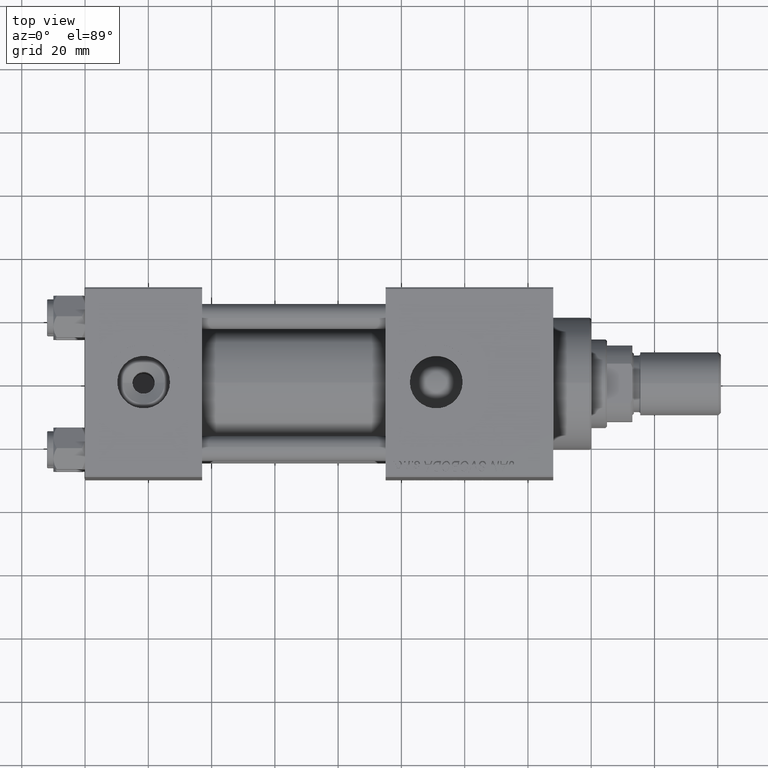
[diagram: clean part render]
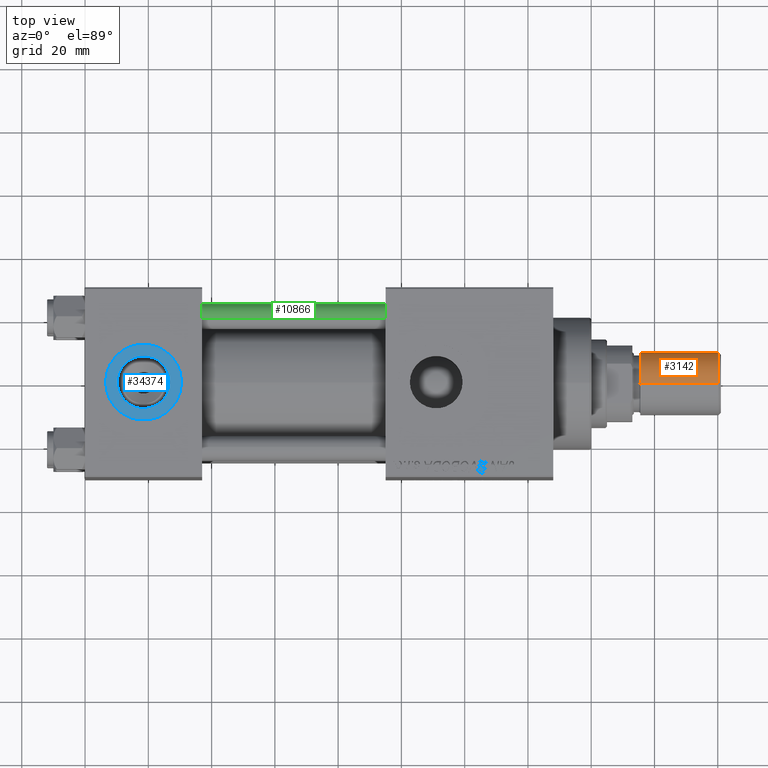
[diagram: same view with three faces highlighted in distinct colors, each labeled with its STEP entity id]
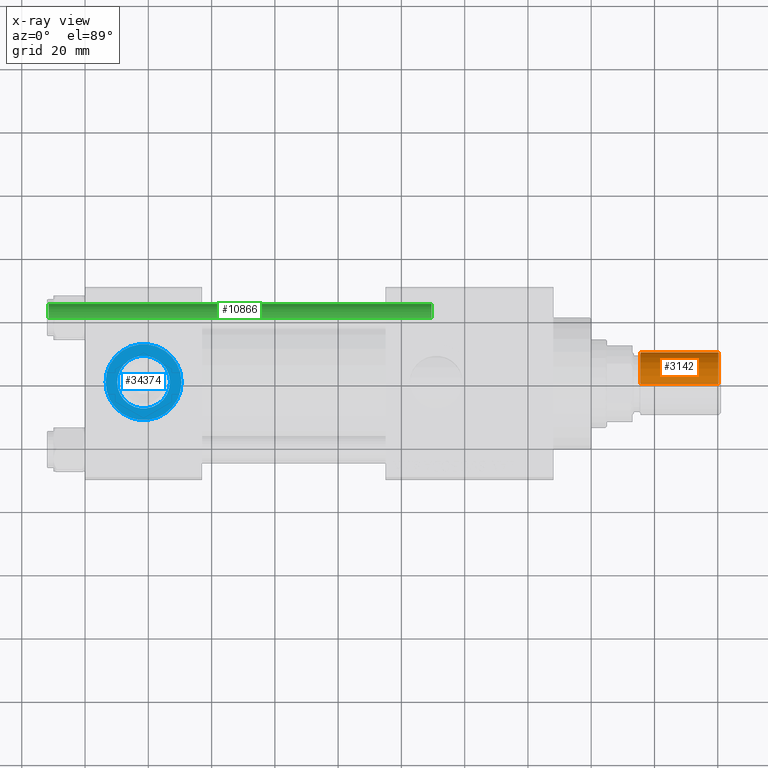
[diagram: x-ray of the same camera — body ghosted, the three highlighted faces saturated]
A machine part, top view with three faces highlighted in distinct colors.
The next image is the same camera in x-ray (body ghosted, the three faces saturated) — at least one of them is partly hidden behind the body in this view.
Their STEP definitions:

[orange] entity #3142 — the highlighted cylindrical surface (edge-blend (fillet) strip) has radius 10 mm, axis along (1, -0, -0).
#45 = CARTESIAN_POINT ( 'NONE',  ( -10.00000000000000000, 0.000000000000000000, 25.50000000000000000 ) ) ;
#997 = CARTESIAN_POINT ( 'NONE',  ( 10.00000000000000000, 1.224646799147353256E-15, 25.50000000000000000 ) ) ;
#2441 = AXIS2_PLACEMENT_3D ( 'NONE', #51791, #47788, #8049 ) ;
#3142 = ADVANCED_FACE ( 'NONE', ( #14195 ), #51235, .T. ) ;
#4289 = DIRECTION ( 'NONE',  ( -0.000000000000000000, -0.000000000000000000, -1.000000000000000000 ) ) ;
#6041 = DIRECTION ( 'NONE',  ( 1.000000000000000000, 0.000000000000000000, 0.000000000000000000 ) ) ;
#6280 = VERTEX_POINT ( 'NONE', #48492 ) ;
#7078 = VECTOR ( 'NONE', #16335, 1000.000000000000000 ) ;
#8049 = DIRECTION ( 'NONE',  ( 1.000000000000000000, 0.000000000000000000, 0.000000000000000000 ) ) ;
#11012 = CIRCLE ( 'NONE', #22943, 10.00000000000000000 ) ;
#11050 = DIRECTION ( 'NONE',  ( -0.000000000000000000, -0.000000000000000000, 1.000000000000000000 ) ) ;
#13521 = CIRCLE ( 'NONE', #2441, 10.00000000000000000 ) ;
#14195 = FACE_OUTER_BOUND ( 'NONE', #34856, .T. ) ;
#14716 = DIRECTION ( 'NONE',  ( -0.000000000000000000, -0.000000000000000000, -1.000000000000000000 ) ) ;
#16335 = DIRECTION ( 'NONE',  ( -0.000000000000000000, -0.000000000000000000, -1.000000000000000000 ) ) ;
#16435 = VERTEX_POINT ( 'NONE', #18601 ) ;
#18601 = CARTESIAN_POINT ( 'NONE',  ( -10.00000000000000000, 0.000000000000000000, 0.8000000000000055955 ) ) ;
#19520 = DIRECTION ( 'NONE',  ( -1.000000000000000000, 0.000000000000000000, 0.000000000000000000 ) ) ;
#19770 = EDGE_CURVE ( 'NONE', #35153, #24727, #28838, .T. ) ;
#19790 = CARTESIAN_POINT ( 'NONE',  ( 10.00000000000000000, 1.224646799147353256E-15, 25.50000000000000000 ) ) ;
#20254 = VECTOR ( 'NONE', #4289, 1000.000000000000000 ) ;
#22943 = AXIS2_PLACEMENT_3D ( 'NONE', #43597, #11050, #6041 ) ;
#24727 = VERTEX_POINT ( 'NONE', #40859 ) ;
#25941 = ORIENTED_EDGE ( 'NONE', *, *, #19770, .T. ) ;
#26581 = EDGE_CURVE ( 'NONE', #35153, #6280, #13521, .T. ) ;
#28282 = AXIS2_PLACEMENT_3D ( 'NONE', #43261, #14716, #19520 ) ;
#28838 = LINE ( 'NONE', #19790, #20254 ) ;
#28863 = LINE ( 'NONE', #45, #7078 ) ;
#30426 = EDGE_CURVE ( 'NONE', #24727, #16435, #11012, .T. ) ;
#34856 = EDGE_LOOP ( 'NONE', ( #37144, #25941, #45739, #35125 ) ) ;
#35125 = ORIENTED_EDGE ( 'NONE', *, *, #43940, .F. ) ;
#35153 = VERTEX_POINT ( 'NONE', #997 ) ;
#37144 = ORIENTED_EDGE ( 'NONE', *, *, #26581, .F. ) ;
#40859 = CARTESIAN_POINT ( 'NONE',  ( 10.00000000000000000, 1.224646799147353256E-15, 0.8000000000000055955 ) ) ;
#43261 = CARTESIAN_POINT ( 'NONE',  ( 0.000000000000000000, 0.000000000000000000, 25.50000000000000000 ) ) ;
#43597 = CARTESIAN_POINT ( 'NONE',  ( 0.000000000000000000, 0.000000000000000000, 0.8000000000000055955 ) ) ;
#43940 = EDGE_CURVE ( 'NONE', #6280, #16435, #28863, .T. ) ;
#45739 = ORIENTED_EDGE ( 'NONE', *, *, #30426, .T. ) ;
#47788 = DIRECTION ( 'NONE',  ( 0.000000000000000000, 0.000000000000000000, 1.000000000000000000 ) ) ;
#48492 = CARTESIAN_POINT ( 'NONE',  ( -10.00000000000000000, 0.000000000000000000, 25.50000000000000000 ) ) ;
#51235 = CYLINDRICAL_SURFACE ( 'NONE', #28282, 10.00000000000000000 ) ;
#51791 = CARTESIAN_POINT ( 'NONE',  ( 0.000000000000000000, 0.000000000000000000, 25.50000000000000000 ) ) ;

[blue] entity #34374 — the highlighted planar face has unit normal (0, 0, 1).
#1074 = CARTESIAN_POINT ( 'NONE',  ( 18.50000000000000000, -3.469446951953614978E-15, 29.79999999999999716 ) ) ;
#2045 = DIRECTION ( 'NONE',  ( 0.000000000000000000, 0.000000000000000000, 1.000000000000000000 ) ) ;
#3930 = VERTEX_POINT ( 'NONE', #36169 ) ;
#3939 = AXIS2_PLACEMENT_3D ( 'NONE', #1074, #8561, #21377 ) ;
#8561 = DIRECTION ( 'NONE',  ( 0.000000000000000000, 0.000000000000000000, 1.000000000000000000 ) ) ;
#10670 = CARTESIAN_POINT ( 'NONE',  ( 18.50000000000000000, -3.469446951953614978E-15, 29.79999999999999716 ) ) ;
#11455 = DIRECTION ( 'NONE',  ( 0.000000000000000000, 0.000000000000000000, 1.000000000000000000 ) ) ;
#11509 = VERTEX_POINT ( 'NONE', #31659 ) ;
#11568 = ORIENTED_EDGE ( 'NONE', *, *, #24893, .F. ) ;
#13052 = CIRCLE ( 'NONE', #13892, 8.330000000000000071 ) ;
#13501 = ORIENTED_EDGE ( 'NONE', *, *, #43435, .F. ) ;
#13892 = AXIS2_PLACEMENT_3D ( 'NONE', #39231, #18699, #43494 ) ;
#18699 = DIRECTION ( 'NONE',  ( 0.000000000000000000, 0.000000000000000000, 1.000000000000000000 ) ) ;
#18953 = DIRECTION ( 'NONE',  ( 1.000000000000000000, 0.000000000000000000, 0.000000000000000000 ) ) ;
#21377 = DIRECTION ( 'NONE',  ( 1.000000000000000000, 0.000000000000000000, 0.000000000000000000 ) ) ;
#21801 = FACE_BOUND ( 'NONE', #37317, .T. ) ;
#24781 = CARTESIAN_POINT ( 'NONE',  ( 26.82999999999999829, -3.469446951953614978E-15, 29.79999999999999716 ) ) ;
#24893 = EDGE_CURVE ( 'NONE', #52205, #48746, #29665, .T. ) ;
#26323 = FACE_OUTER_BOUND ( 'NONE', #49794, .T. ) ;
#26589 = CARTESIAN_POINT ( 'NONE',  ( 18.50000000000000000, -3.469446951953614978E-15, 29.79999999999999716 ) ) ;
#26960 = CIRCLE ( 'NONE', #3939, 12.00000000000000000 ) ;
#29665 = CIRCLE ( 'NONE', #33932, 8.330000000000000071 ) ;
#29800 = DIRECTION ( 'NONE',  ( 1.000000000000000000, 0.000000000000000000, -0.000000000000000000 ) ) ;
#30705 = CIRCLE ( 'NONE', #41736, 12.00000000000000000 ) ;
#31223 = CARTESIAN_POINT ( 'NONE',  ( 18.50000000000000000, -3.469446951953614978E-15, 29.79999999999999716 ) ) ;
#31493 = ORIENTED_EDGE ( 'NONE', *, *, #50950, .T. ) ;
#31659 = CARTESIAN_POINT ( 'NONE',  ( 6.499999999999997335, -1.999870792976790833E-15, 29.79999999999999716 ) ) ;
#32746 = EDGE_CURVE ( 'NONE', #3930, #11509, #30705, .T. ) ;
#33932 = AXIS2_PLACEMENT_3D ( 'NONE', #10670, #47459, #18953 ) ;
#34374 = ADVANCED_FACE ( 'NONE', ( #21801, #26323 ), #37800, .T. ) ;
#36169 = CARTESIAN_POINT ( 'NONE',  ( 30.50000000000000000, -3.469446951953614978E-15, 29.79999999999999716 ) ) ;
#37317 = EDGE_LOOP ( 'NONE', ( #11568, #13501 ) ) ;
#37532 = AXIS2_PLACEMENT_3D ( 'NONE', #26589, #2045, #29800 ) ;
#37800 = PLANE ( 'NONE',  #37532 ) ;
#39231 = CARTESIAN_POINT ( 'NONE',  ( 18.50000000000000000, -3.469446951953614978E-15, 29.79999999999999716 ) ) ;
#40897 = ORIENTED_EDGE ( 'NONE', *, *, #32746, .T. ) ;
#41014 = CARTESIAN_POINT ( 'NONE',  ( 10.16999999999999638, -2.449316168263869821E-15, 29.79999999999999716 ) ) ;
#41736 = AXIS2_PLACEMENT_3D ( 'NONE', #31223, #11455, #43225 ) ;
#43225 = DIRECTION ( 'NONE',  ( 1.000000000000000000, 0.000000000000000000, 0.000000000000000000 ) ) ;
#43435 = EDGE_CURVE ( 'NONE', #48746, #52205, #13052, .T. ) ;
#43494 = DIRECTION ( 'NONE',  ( 1.000000000000000000, 0.000000000000000000, 0.000000000000000000 ) ) ;
#47459 = DIRECTION ( 'NONE',  ( 0.000000000000000000, 0.000000000000000000, 1.000000000000000000 ) ) ;
#48746 = VERTEX_POINT ( 'NONE', #41014 ) ;
#49794 = EDGE_LOOP ( 'NONE', ( #40897, #31493 ) ) ;
#50950 = EDGE_CURVE ( 'NONE', #11509, #3930, #26960, .T. ) ;
#52205 = VERTEX_POINT ( 'NONE', #24781 ) ;

[green] entity #10866 — the highlighted cylindrical surface (edge-blend (fillet) strip) has radius 4 mm, axis along (-1, 0, 0).
#334 = DIRECTION ( 'NONE',  ( -0.000000000000000000, -0.000000000000000000, -1.000000000000000000 ) ) ;
#1388 = LINE ( 'NONE', #38197, #12351 ) ;
#2967 = EDGE_CURVE ( 'NONE', #37447, #52659, #36098, .T. ) ;
#3065 = CARTESIAN_POINT ( 'NONE',  ( 0.000000000000000000, 0.000000000000000000, 121.5000000000000426 ) ) ;
#5255 = CARTESIAN_POINT ( 'NONE',  ( -4.000000000000000000, 0.000000000000000000, 121.5000000000000426 ) ) ;
#5290 = ORIENTED_EDGE ( 'NONE', *, *, #31048, .T. ) ;
#5576 = DIRECTION ( 'NONE',  ( -0.000000000000000000, -0.000000000000000000, -1.000000000000000000 ) ) ;
#6194 = CIRCLE ( 'NONE', #20681, 4.000000000000000000 ) ;
#6314 = DIRECTION ( 'NONE',  ( 1.000000000000000000, 0.000000000000000000, 0.000000000000000000 ) ) ;
#6422 = AXIS2_PLACEMENT_3D ( 'NONE', #33350, #5576, #29335 ) ;
#8869 = DIRECTION ( 'NONE',  ( -0.000000000000000000, -0.000000000000000000, -1.000000000000000000 ) ) ;
#9585 = FACE_OUTER_BOUND ( 'NONE', #37872, .T. ) ;
#10585 = DIRECTION ( 'NONE',  ( -0.000000000000000000, -0.000000000000000000, 1.000000000000000000 ) ) ;
#10866 = ADVANCED_FACE ( 'NONE', ( #9585 ), #25861, .T. ) ;
#12351 = VECTOR ( 'NONE', #8869, 1000.000000000000000 ) ;
#13829 = ORIENTED_EDGE ( 'NONE', *, *, #49500, .T. ) ;
#16994 = AXIS2_PLACEMENT_3D ( 'NONE', #42868, #10585, #6314 ) ;
#18843 = VERTEX_POINT ( 'NONE', #28423 ) ;
#20681 = AXIS2_PLACEMENT_3D ( 'NONE', #3065, #40133, #23869 ) ;
#23869 = DIRECTION ( 'NONE',  ( 1.000000000000000000, 0.000000000000000000, 0.000000000000000000 ) ) ;
#23880 = CARTESIAN_POINT ( 'NONE',  ( -4.000000000000000000, 0.000000000000000000, 0.5000000000000559552 ) ) ;
#25861 = CYLINDRICAL_SURFACE ( 'NONE', #6422, 4.000000000000000000 ) ;
#28423 = CARTESIAN_POINT ( 'NONE',  ( 4.000000000000000000, 4.898587196589411843E-16, 0.5000000000000559552 ) ) ;
#29335 = DIRECTION ( 'NONE',  ( -1.000000000000000000, 0.000000000000000000, 0.000000000000000000 ) ) ;
#31048 = EDGE_CURVE ( 'NONE', #18843, #52659, #38269, .T. ) ;
#31904 = ORIENTED_EDGE ( 'NONE', *, *, #39780, .T. ) ;
#33350 = CARTESIAN_POINT ( 'NONE',  ( 0.000000000000000000, 0.000000000000000000, 122.0000000000000000 ) ) ;
#36098 = LINE ( 'NONE', #48598, #43638 ) ;
#37447 = VERTEX_POINT ( 'NONE', #5255 ) ;
#37872 = EDGE_LOOP ( 'NONE', ( #31904, #13829, #5290, #40499 ) ) ;
#38197 = CARTESIAN_POINT ( 'NONE',  ( 4.000000000000000000, 4.898587196589411843E-16, 122.0000000000000000 ) ) ;
#38269 = CIRCLE ( 'NONE', #16994, 4.000000000000000000 ) ;
#39780 = EDGE_CURVE ( 'NONE', #37447, #44665, #6194, .T. ) ;
#40133 = DIRECTION ( 'NONE',  ( 0.000000000000000000, 0.000000000000000000, -1.000000000000000000 ) ) ;
#40499 = ORIENTED_EDGE ( 'NONE', *, *, #2967, .F. ) ;
#41630 = CARTESIAN_POINT ( 'NONE',  ( 4.000000000000000000, 4.898587196589411843E-16, 121.5000000000000426 ) ) ;
#42868 = CARTESIAN_POINT ( 'NONE',  ( 0.000000000000000000, 0.000000000000000000, 0.5000000000000559552 ) ) ;
#43638 = VECTOR ( 'NONE', #334, 1000.000000000000000 ) ;
#44665 = VERTEX_POINT ( 'NONE', #41630 ) ;
#48598 = CARTESIAN_POINT ( 'NONE',  ( -4.000000000000000000, 0.000000000000000000, 122.0000000000000000 ) ) ;
#49500 = EDGE_CURVE ( 'NONE', #44665, #18843, #1388, .T. ) ;
#52659 = VERTEX_POINT ( 'NONE', #23880 ) ;